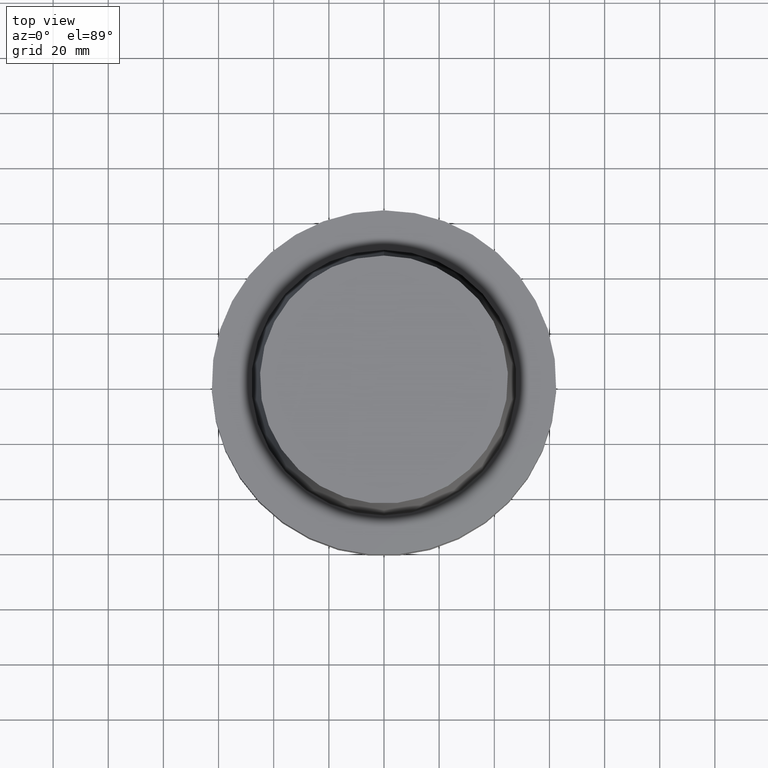
[diagram: clean part render]
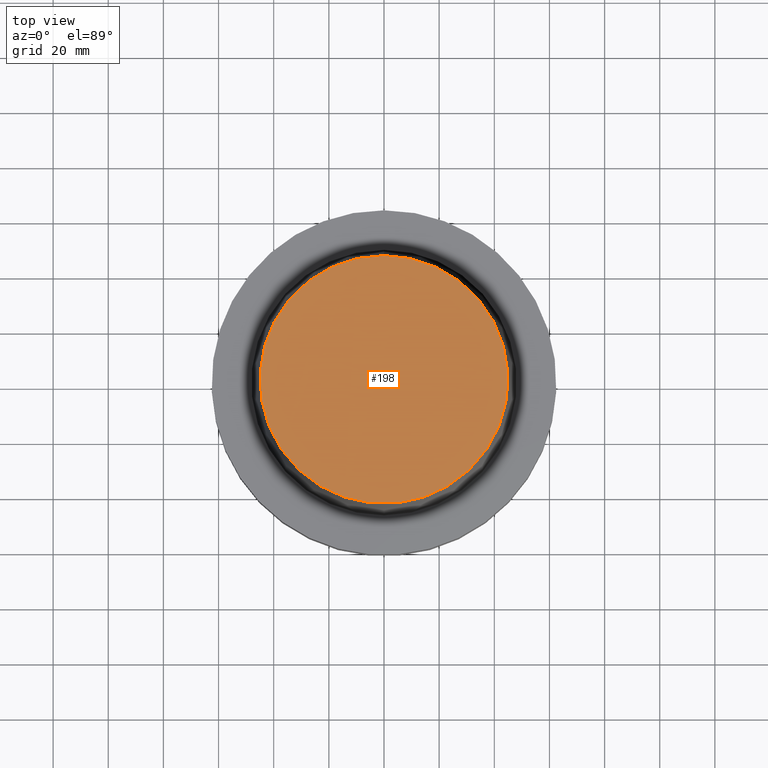
[diagram: same view with one face highlighted and labeled with its STEP entity id]
A machine part, top view. The second image highlights one B-rep face of the part: STEP entity #198.
In plain terms, the highlighted planar face has unit normal (-0, -0, 1).
Its self-contained STEP definition (entity closure, byte-faithful):
#111=EDGE_CURVE('Unnamed[1]',#274,#274,#275,.T.);
#198=ADVANCED_FACE('Unnamed[1]',(#411),#412,.T.);
#274=VERTEX_POINT('',#492);
#275=CIRCLE('',#493,44.9779398797591);
#411=FACE_OUTER_BOUND('',#664,.T.);
#412=PLANE('',#665);
#492=CARTESIAN_POINT('',(-3.85763741731416E-015,44.9779398797591,62.9999999999999));
#493=AXIS2_PLACEMENT_3D('',#731,#732,#733);
#664=EDGE_LOOP('',(#884));
#665=AXIS2_PLACEMENT_3D('',#885,#886,#887);
#731=CARTESIAN_POINT('',(-3.85763741731416E-015,-7.71527483462831E-015,62.9999999999999));
#732=DIRECTION('',(6.12323399573677E-017,1.22464679914735E-016,-1.0));
#733=DIRECTION('',(-1.23259516440783E-032,1.0,1.22464679914735E-016));
#884=ORIENTED_EDGE('',*,*,#111,.F.);
#885=CARTESIAN_POINT('',(-3.85763741731416E-015,22.4889699398795,62.9999999999999));
#886=DIRECTION('',(-6.12323399573677E-017,-1.22464679914735E-016,1.0));
#887=DIRECTION('',(1.23259516440783E-032,-1.0,-1.22464679914735E-016));